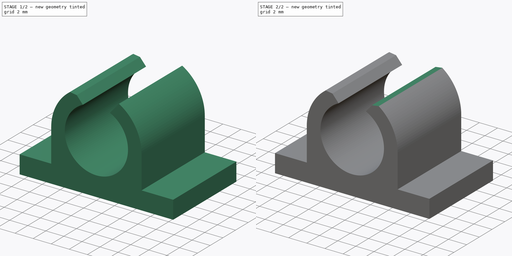
[diagram: build sequence overview — one tinted view per stage of 2, left to right]
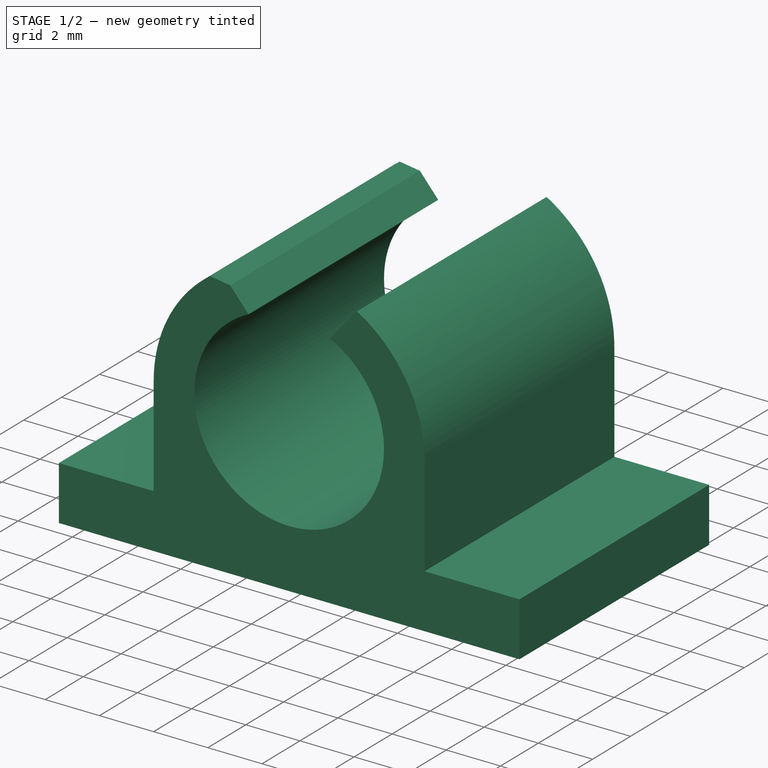
[diagram: stage 1 of 2 — iso view after this stage's code; geometry added in this stage tinted green]
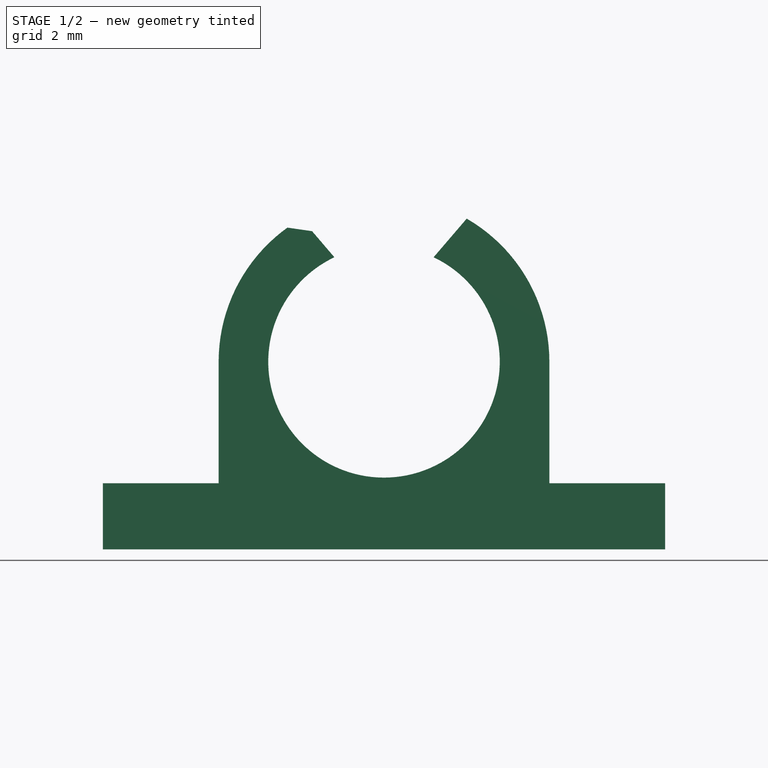
[diagram: stage 1 of 2 — front view after this stage's code; geometry added in this stage tinted green]
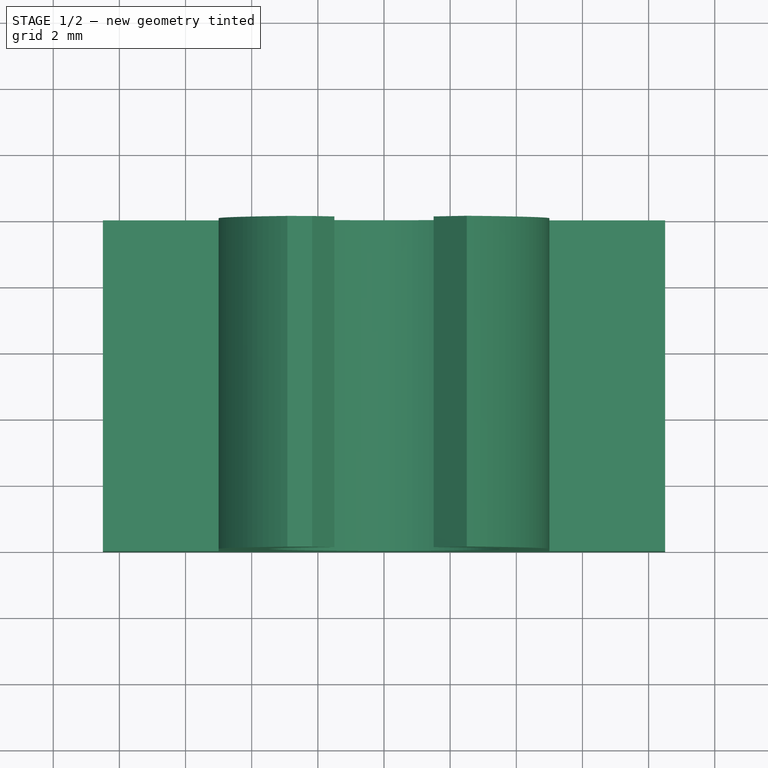
[diagram: stage 1 of 2 — top view after this stage's code; geometry added in this stage tinted green]
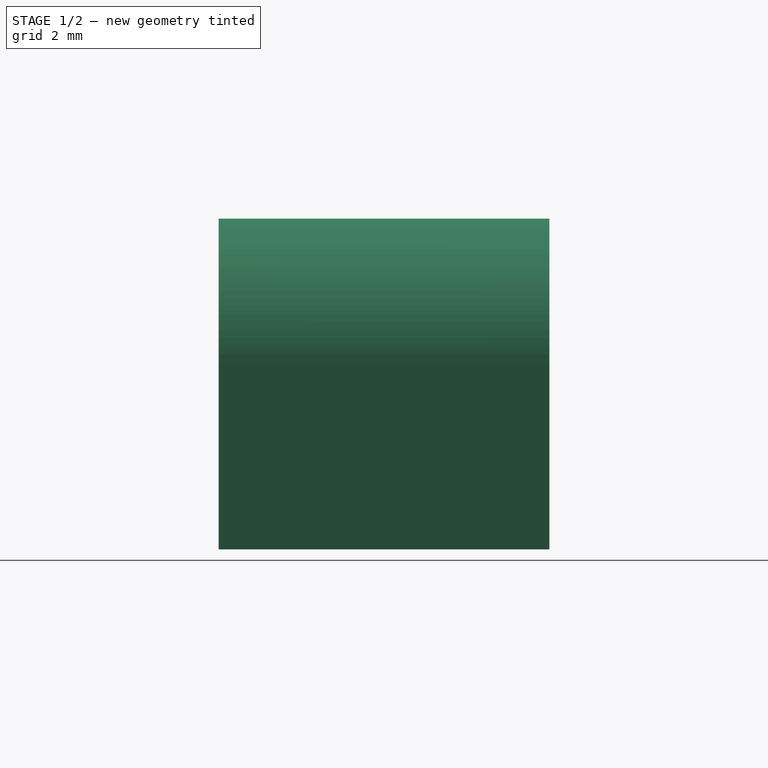
[diagram: stage 1 of 2 — right view after this stage's code; geometry added in this stage tinted green]
FCSTD DOCUMENT  (FreeCAD 0.15R4671 (Git))
Label: motor_holder_v4
License: CC-BY 3.0
LicenseURL: http://creativecommons.org/licenses/by/3.0/
objects: PartDesign::Chamfer×2, Sketcher::SketchObject×1, PartDesign::Pad×1
note: 5 computed .brp shape members not serialized (recipe doc carries the construction recipe); baked Part::Feature solids carry a one-line shape summary decoded from their .brp

FEATURE [Sketcher::SketchObject] Sketch
  Placement = pos=(0,0,0) rot=(1,0,0;1.5708rad)
  sketch-geometry (12):
    g0: ArcOfCircle CenterX=0 CenterY=0 CenterZ=0 NormalX=0 NormalY=0 NormalZ=1 Radius=3.5 StartAngle=2.01371 EndAngle=7.41107
    g1: ArcOfCircle CenterX=0 CenterY=0 CenterZ=0 NormalX=0 NormalY=0 NormalZ=1 Radius=5 StartAngle=2.0944 EndAngle=3.14159
    g2: LineSegment StartX=-2.5 StartY=4.33013 StartZ=0 EndX=-1.5 EndY=3.16228 EndZ=0
    g3: ArcOfCircle CenterX=0 CenterY=0 CenterZ=0 NormalX=0 NormalY=0 NormalZ=1 Radius=5 StartAngle=5.37347e-06 EndAngle=1.0472
    g4: LineSegment StartX=1.5 StartY=3.16228 StartZ=0 EndX=2.5 EndY=4.33013 EndZ=0
    g5: LineSegment StartX=-5 StartY=2.68673e-05 StartZ=0 EndX=-5 EndY=-3.66987 EndZ=0
    g6: LineSegment StartX=5 StartY=-3.66987 StartZ=0 EndX=5 EndY=2.68673e-05 EndZ=0
    g7: LineSegment StartX=-5 StartY=-3.66987 StartZ=0 EndX=-8.5 EndY=-3.66987 EndZ=0
    g8: LineSegment StartX=-8.5 StartY=-3.66987 StartZ=0 EndX=-8.5 EndY=-5.66987 EndZ=0
    g9: LineSegment StartX=-8.5 StartY=-5.66987 StartZ=0 EndX=8.5 EndY=-5.66987 EndZ=0
    g10: LineSegment StartX=8.5 StartY=-5.66987 StartZ=0 EndX=8.5 EndY=-3.66987 EndZ=0
    g11: LineSegment StartX=8.5 StartY=-3.66987 StartZ=0 EndX=5 EndY=-3.66987 EndZ=0
  constraints (35):
    c: Symmetric(g0,g0,g-2)
    c: Coincident(g0,g-1)
    c: DistanceX(g0,g0) = -3
    c: Radius(g1) = 5
    c: Coincident(g2,g1)
    c: Equal(g1,g3)
    c: DistanceX(g1,g4) = 5
    c: Equal(g4,g2)
    c: Coincident(g0,g4)
    c: Coincident(g3,g4)
    c: Symmetric(g3,g1,g-2)
    c: Radius(g0) = 3.5
    c: Coincident(g3,g-1)
    c: Symmetric(g3,g1,g-2)
    c: Symmetric(g5,g6,g-2)
    c: Equal(g5,g6)
    c: Symmetric(g6,g5,g-2)
    c: Coincident(g5,g1)
    c: Coincident(g2,g0)
    c: Coincident(g9,g10)
    c: Coincident(g11,g10)
    c: Coincident(g8,g7)
    c: Coincident(g9,g8)
    c: Equal(g8,g10)
    c: Equal(g7,g11)
    c: Symmetric(g8,g9,g-2)
    c: DistanceX(g9) = 17
    c: DistanceY(g8) = -2
    c: Perpendicular(g11,g10)
    c: Perpendicular(g11,g6)
    c: Perpendicular(g5,g7)
    c: DistanceX(g5,g6) = 10
    c: Perpendicular(g8,g9)
    c: Coincident(g7,g5)
    c: DistanceY(g8,g1) = 10
FEATURE [PartDesign::Pad] Pad
  Length = 10
  Length2 = 100
  Placement = pos=(0,0,0) rot=(1,0,0;1.5708rad)
  Sketch = -> Sketch
  Type = 0
FEATURE [PartDesign::Chamfer] Chamfer
  Base = -> Pad [Edge1]
  Placement = pos=(0,0,0) rot=(1,0,0;1.5708rad)
  Size = 0.5
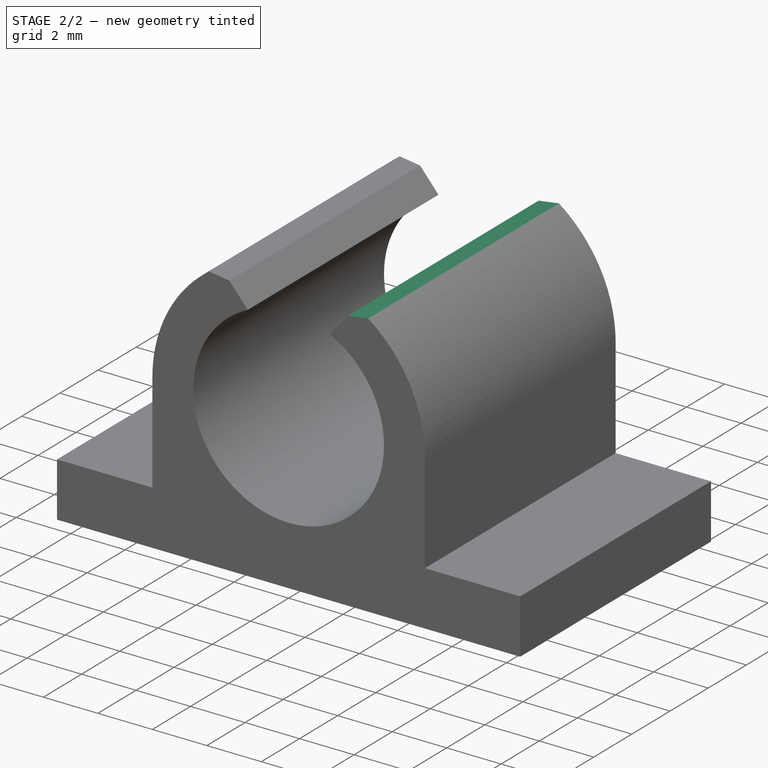
[diagram: stage 2 of 2 — iso view after this stage's code; geometry added in this stage tinted green]
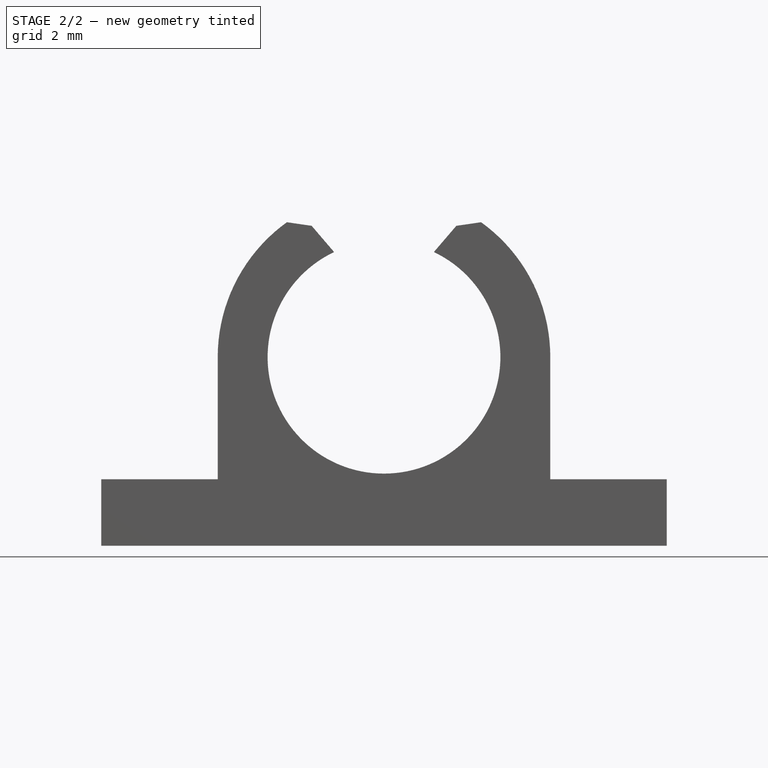
[diagram: stage 2 of 2 — front view after this stage's code; geometry added in this stage tinted green]
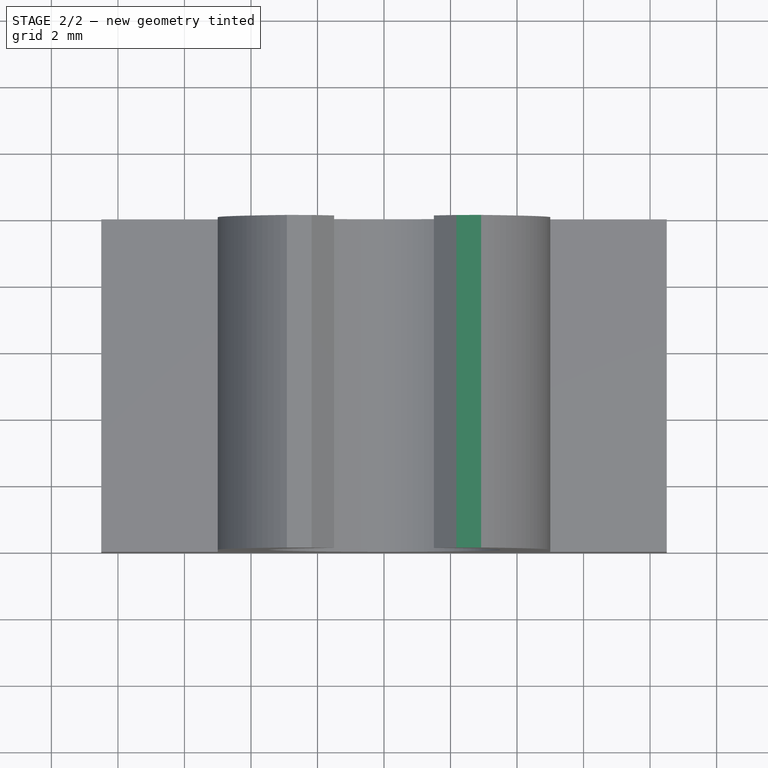
[diagram: stage 2 of 2 — top view after this stage's code; geometry added in this stage tinted green]
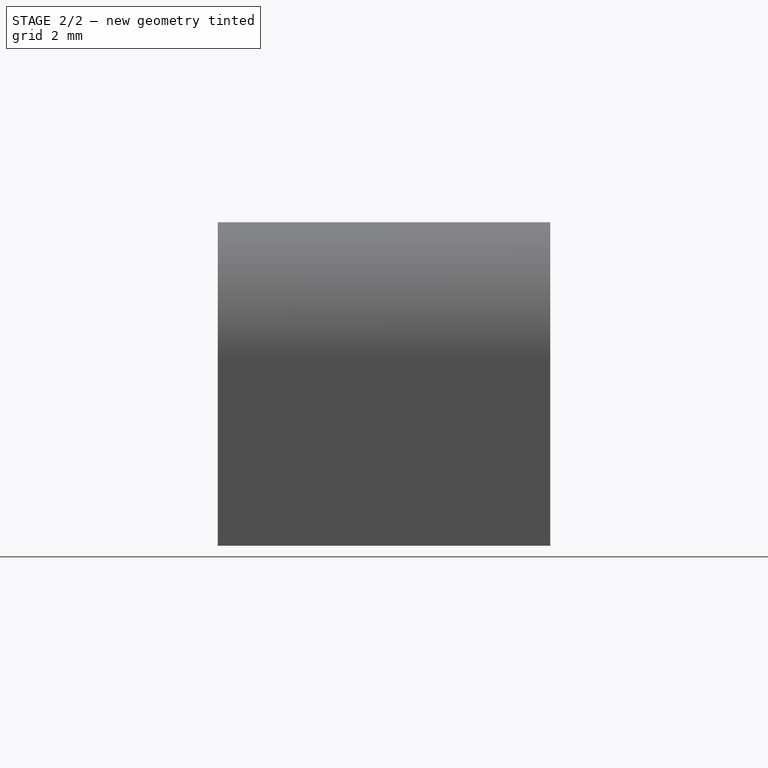
[diagram: stage 2 of 2 — right view after this stage's code; geometry added in this stage tinted green]
FEATURE [PartDesign::Chamfer] Chamfer001
  Base = -> Chamfer [Edge32]
  Placement = pos=(0,0,0) rot=(1,0,0;1.5708rad)
  Size = 0.5
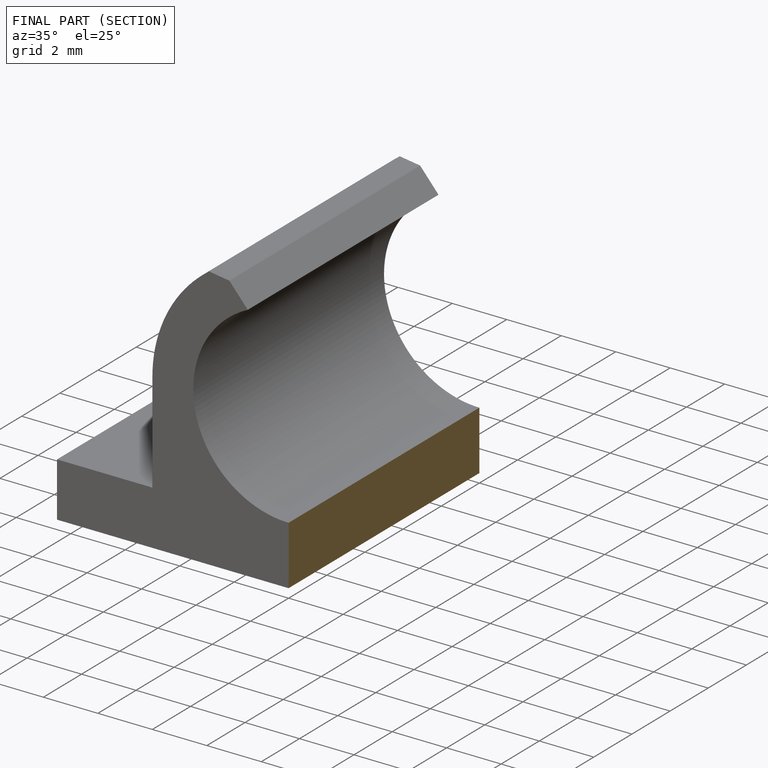
[diagram: finished part — half-section view (interior)]
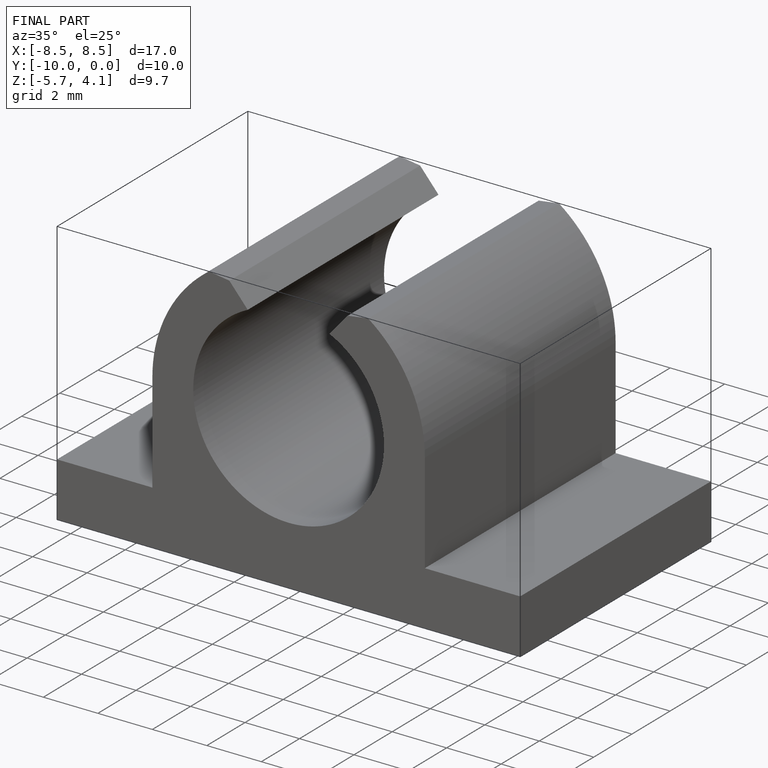
[diagram: finished part — iso view with bounding-box wireframe]
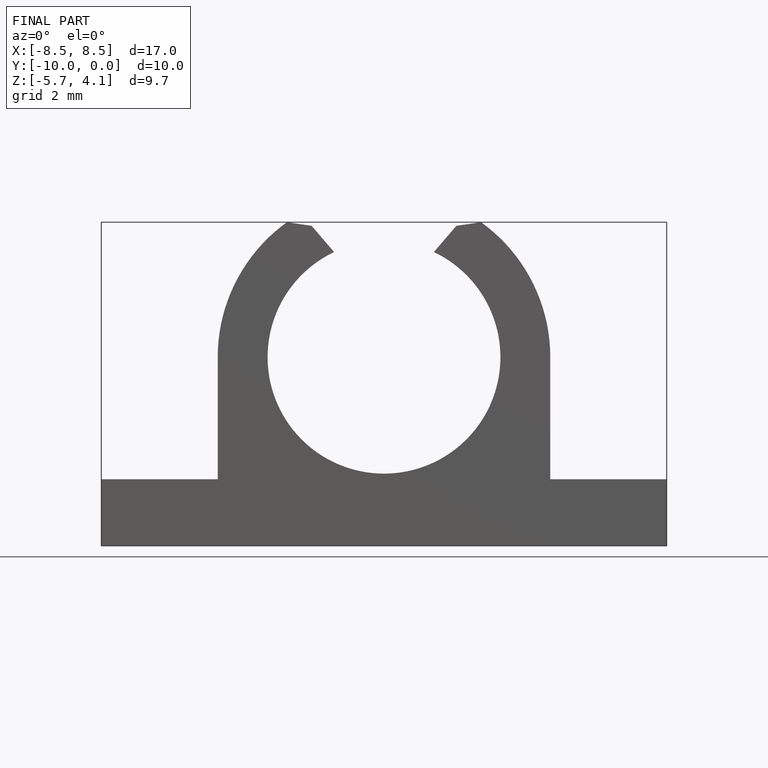
[diagram: finished part — front view with bounding-box wireframe]
